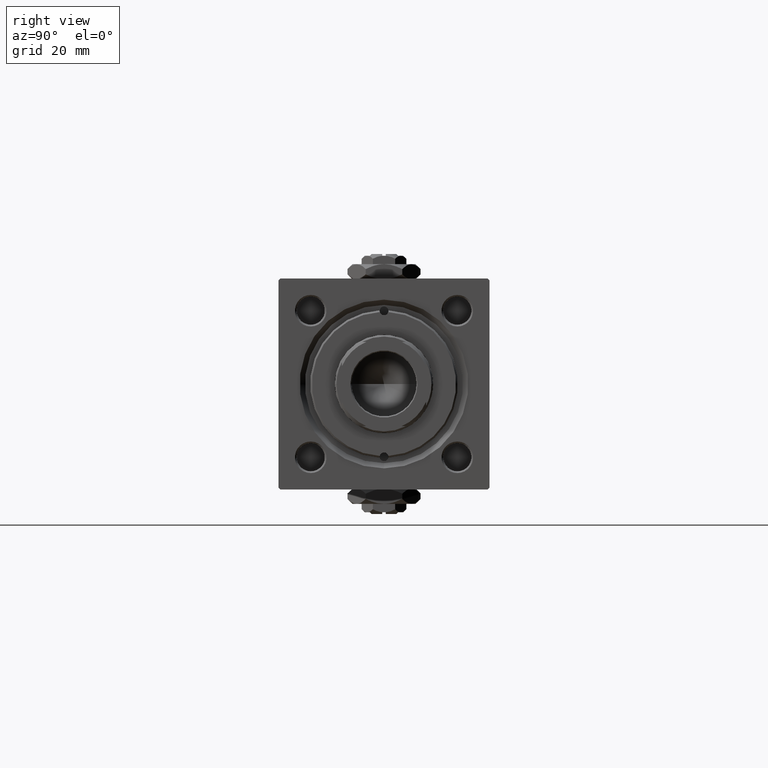
[diagram: clean part render]
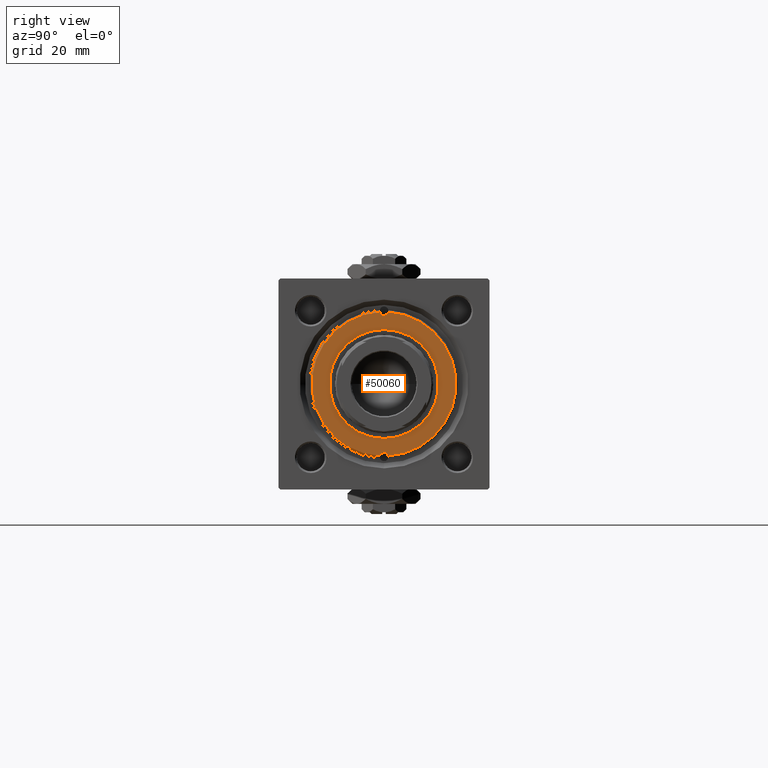
[diagram: same view with one face highlighted and labeled with its STEP entity id]
A machine part, right view. The second image highlights one B-rep face of the part: STEP entity #50060.
In plain terms, the highlighted planar face has unit normal (1, 0, 0).
Its self-contained STEP definition (entity closure, byte-faithful):
#81 = CARTESIAN_POINT ( 'NONE',  ( 0.000000000000000000, 0.000000000000000000, 40.70000000000000284 ) ) ;
#843 = CARTESIAN_POINT ( 'NONE',  ( -15.50000000000000000, 1.898202538678397557E-15, 40.70000000000000284 ) ) ;
#1412 = DIRECTION ( 'NONE',  ( 0.000000000000000000, 0.000000000000000000, 1.000000000000000000 ) ) ;
#1954 = VERTEX_POINT ( 'NONE', #15432 ) ;
#2381 = EDGE_CURVE ( 'NONE', #1954, #28962, #41196, .T. ) ;
#2454 = CARTESIAN_POINT ( 'NONE',  ( 19.50000000000000000, 1.530808498934195022E-16, 40.70000000000000284 ) ) ;
#2911 = ORIENTED_EDGE ( 'NONE', *, *, #12577, .T. ) ;
#3338 = CIRCLE ( 'NONE', #8424, 15.50000000000000000 ) ;
#5665 = CARTESIAN_POINT ( 'NONE',  ( 0.000000000000000000, 0.000000000000000000, 40.70000000000000284 ) ) ;
#6148 = CARTESIAN_POINT ( 'NONE',  ( -20.46385542168674476, -1.216807823899045626, 40.70000000000000284 ) ) ;
#7238 = AXIS2_PLACEMENT_3D ( 'NONE', #30652, #30918, #50333 ) ;
#7580 = DIRECTION ( 'NONE',  ( 1.000000000000000000, 0.000000000000000000, 0.000000000000000000 ) ) ;
#7694 = VERTEX_POINT ( 'NONE', #44690 ) ;
#7782 = EDGE_CURVE ( 'NONE', #40603, #10029, #3338, .T. ) ;
#8179 = EDGE_CURVE ( 'NONE', #22772, #10686, #43742, .T. ) ;
#8367 = DIRECTION ( 'NONE',  ( 1.000000000000000000, 0.000000000000000000, 0.000000000000000000 ) ) ;
#8424 = AXIS2_PLACEMENT_3D ( 'NONE', #17307, #13851, #29518 ) ;
#8848 = ORIENTED_EDGE ( 'NONE', *, *, #2381, .F. ) ;
#9321 = AXIS2_PLACEMENT_3D ( 'NONE', #81, #12531, #9340 ) ;
#9340 = DIRECTION ( 'NONE',  ( 1.000000000000000000, 0.000000000000000000, 0.000000000000000000 ) ) ;
#9909 = CARTESIAN_POINT ( 'NONE',  ( 20.46385542168674476, -1.216807823899045404, 40.70000000000000284 ) ) ;
#10029 = VERTEX_POINT ( 'NONE', #27022 ) ;
#10614 = CARTESIAN_POINT ( 'NONE',  ( -20.46385542168674476, 1.216807823899045404, 40.70000000000000284 ) ) ;
#10686 = VERTEX_POINT ( 'NONE', #9909 ) ;
#11590 = FACE_OUTER_BOUND ( 'NONE', #32961, .T. ) ;
#12531 = DIRECTION ( 'NONE',  ( 0.000000000000000000, 0.000000000000000000, 1.000000000000000000 ) ) ;
#12577 = EDGE_CURVE ( 'NONE', #1954, #49768, #47456, .T. ) ;
#13851 = DIRECTION ( 'NONE',  ( 0.000000000000000000, 0.000000000000000000, 1.000000000000000000 ) ) ;
#15432 = CARTESIAN_POINT ( 'NONE',  ( 20.46385542168674476, 1.216807823899045626, 40.70000000000000284 ) ) ;
#16297 = ORIENTED_EDGE ( 'NONE', *, *, #19046, .F. ) ;
#16932 = DIRECTION ( 'NONE',  ( 1.000000000000000000, 0.000000000000000000, 0.000000000000000000 ) ) ;
#17307 = CARTESIAN_POINT ( 'NONE',  ( 0.000000000000000000, 0.000000000000000000, 40.70000000000000284 ) ) ;
#19046 = EDGE_CURVE ( 'NONE', #7694, #49768, #19707, .T. ) ;
#19707 = CIRCLE ( 'NONE', #26507, 1.250000000000001110 ) ;
#21638 = CIRCLE ( 'NONE', #7238, 15.50000000000000000 ) ;
#22772 = VERTEX_POINT ( 'NONE', #6148 ) ;
#23123 = EDGE_CURVE ( 'NONE', #22772, #7694, #30063, .T. ) ;
#23546 = PLANE ( 'NONE',  #46214 ) ;
#24119 = DIRECTION ( 'NONE',  ( -0.000000000000000000, -0.000000000000000000, 1.000000000000000000 ) ) ;
#25081 = AXIS2_PLACEMENT_3D ( 'NONE', #25165, #24119, #16932 ) ;
#25082 = AXIS2_PLACEMENT_3D ( 'NONE', #5665, #1412, #32754 ) ;
#25165 = CARTESIAN_POINT ( 'NONE',  ( 20.75000000000000000, 0.000000000000000000, 40.70000000000000284 ) ) ;
#26496 = AXIS2_PLACEMENT_3D ( 'NONE', #27772, #43964, #7580 ) ;
#26507 = AXIS2_PLACEMENT_3D ( 'NONE', #33514, #33777, #49976 ) ;
#26597 = ORIENTED_EDGE ( 'NONE', *, *, #7782, .F. ) ;
#27022 = CARTESIAN_POINT ( 'NONE',  ( 15.50000000000000000, 0.000000000000000000, 40.70000000000000284 ) ) ;
#27772 = CARTESIAN_POINT ( 'NONE',  ( 20.75000000000000000, 0.000000000000000000, 40.70000000000000284 ) ) ;
#28962 = VERTEX_POINT ( 'NONE', #2454 ) ;
#29518 = DIRECTION ( 'NONE',  ( 1.000000000000000000, 0.000000000000000000, 0.000000000000000000 ) ) ;
#29899 = CIRCLE ( 'NONE', #26496, 1.250000000000001110 ) ;
#30063 = CIRCLE ( 'NONE', #47005, 1.250000000000001110 ) ;
#30652 = CARTESIAN_POINT ( 'NONE',  ( 0.000000000000000000, 0.000000000000000000, 40.70000000000000284 ) ) ;
#30725 = DIRECTION ( 'NONE',  ( 0.000000000000000000, 0.000000000000000000, 1.000000000000000000 ) ) ;
#30918 = DIRECTION ( 'NONE',  ( 0.000000000000000000, 0.000000000000000000, 1.000000000000000000 ) ) ;
#30932 = ORIENTED_EDGE ( 'NONE', *, *, #44783, .F. ) ;
#32031 = ORIENTED_EDGE ( 'NONE', *, *, #51493, .F. ) ;
#32534 = DIRECTION ( 'NONE',  ( -0.000000000000000000, -0.000000000000000000, 1.000000000000000000 ) ) ;
#32754 = DIRECTION ( 'NONE',  ( 1.000000000000000000, 0.000000000000000000, 0.000000000000000000 ) ) ;
#32961 = EDGE_LOOP ( 'NONE', ( #38946, #43159, #30932, #8848, #2911, #16297 ) ) ;
#33514 = CARTESIAN_POINT ( 'NONE',  ( -20.75000000000000000, 0.000000000000000000, 40.70000000000000284 ) ) ;
#33777 = DIRECTION ( 'NONE',  ( -0.000000000000000000, -0.000000000000000000, 1.000000000000000000 ) ) ;
#36107 = EDGE_LOOP ( 'NONE', ( #32031, #26597 ) ) ;
#38943 = DIRECTION ( 'NONE',  ( 1.000000000000000000, 0.000000000000000000, -0.000000000000000000 ) ) ;
#38946 = ORIENTED_EDGE ( 'NONE', *, *, #23123, .F. ) ;
#38983 = CARTESIAN_POINT ( 'NONE',  ( -20.75000000000000000, 0.000000000000000000, 40.70000000000000284 ) ) ;
#40005 = CARTESIAN_POINT ( 'NONE',  ( 0.000000000000000000, 0.000000000000000000, 40.70000000000000284 ) ) ;
#40603 = VERTEX_POINT ( 'NONE', #843 ) ;
#41196 = CIRCLE ( 'NONE', #25081, 1.250000000000001110 ) ;
#43159 = ORIENTED_EDGE ( 'NONE', *, *, #8179, .T. ) ;
#43742 = CIRCLE ( 'NONE', #25082, 20.49999999999999645 ) ;
#43964 = DIRECTION ( 'NONE',  ( -0.000000000000000000, -0.000000000000000000, 1.000000000000000000 ) ) ;
#44690 = CARTESIAN_POINT ( 'NONE',  ( -19.50000000000000000, 0.000000000000000000, 40.70000000000000284 ) ) ;
#44783 = EDGE_CURVE ( 'NONE', #28962, #10686, #29899, .T. ) ;
#46214 = AXIS2_PLACEMENT_3D ( 'NONE', #40005, #30725, #38943 ) ;
#47005 = AXIS2_PLACEMENT_3D ( 'NONE', #38983, #32534, #8367 ) ;
#47456 = CIRCLE ( 'NONE', #9321, 20.49999999999999645 ) ;
#49768 = VERTEX_POINT ( 'NONE', #10614 ) ;
#49976 = DIRECTION ( 'NONE',  ( 1.000000000000000000, 0.000000000000000000, 0.000000000000000000 ) ) ;
#50060 = ADVANCED_FACE ( 'NONE', ( #11590, #51179 ), #23546, .T. ) ;
#50333 = DIRECTION ( 'NONE',  ( 1.000000000000000000, 0.000000000000000000, 0.000000000000000000 ) ) ;
#51179 = FACE_BOUND ( 'NONE', #36107, .T. ) ;
#51493 = EDGE_CURVE ( 'NONE', #10029, #40603, #21638, .T. ) ;